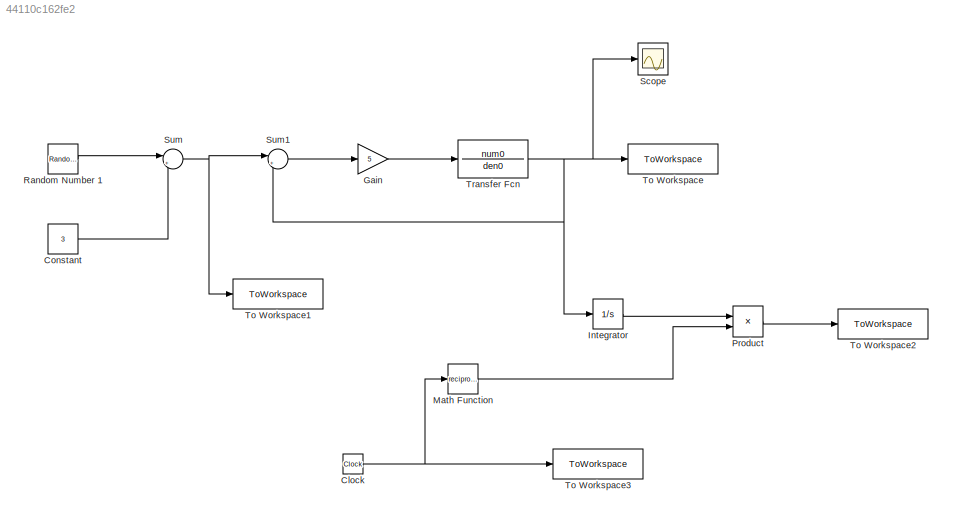
MODEL slx_44110c162fe2
KIND model
CONFIG AbsTol = auto
CONFIG EnableMultiTasking = off
CONFIG FixedStep = auto
CONFIG MaxStep = auto
CONFIG MinStep = auto
CONFIG RelTol = 1e-3
CONFIG SampleTimeConstraint = Unconstrained
CONFIG SolverName = VariableStepAuto
CONFIG StartTime = 0.0
CONFIG StopTime = 1000
BLOCK [Clock] Clock
BLOCK [Constant] Constant
  Value = 3
BLOCK [Gain] Gain
  Gain = 5
BLOCK [Integrator] Integrator
BLOCK [Math] Math Function
  Operator = reciprocal
  RndMeth = Zero
  SignedPower = on
BLOCK [Product] Product
BLOCK [RandomNumber] Random Number 1
  SampleTime = 0.1
BLOCK [Scope] Scope
  Floating = off
  NumInputPorts = 1
  ScopeSpecificationString = Simulink.scopes.TimeScopeBlockCfg('CurrentConfiguration', extmgr.ConfigurationSet(extmgr.Configuration('Core','General UI',true),extmgr.Configuration('Core','Source UI',true),extmgr.Configuration('Sources','WiredSimulink',true),extmgr.Configuration('Visuals','Time Domain',true,'SerializedDisplays',{struct('MinYLimReal','-0.6802','MaxYLimReal','6.12182','YLabelReal','','MinYLimMag','0.00000','MaxYL...<+1386ch>
BLOCK [Sum] Sum
  Inputs = |++
BLOCK [Sum] Sum1
  Inputs = |+-
BLOCK [ToWorkspace] To Workspace
  FixptAsFi = on
  MaxDataPoints = inf
  SampleTime = -1
  VariableName = Y
BLOCK [ToWorkspace] To Workspace1
  FixptAsFi = on
  MaxDataPoints = inf
  SampleTime = -1
  VariableName = U
BLOCK [ToWorkspace] To Workspace2
  FixptAsFi = on
  MaxDataPoints = inf
  SampleTime = -1
  VariableName = my
BLOCK [ToWorkspace] To Workspace3
  FixptAsFi = on
  MaxDataPoints = inf
  SampleTime = -1
  VariableName = t
BLOCK [TransferFcn] Transfer Fcn
  Denominator = den0
  Numerator = num0
NET Clock:1 -> Math Function:1, To Workspace3:1
LINE Constant:1 -> Sum:2
LINE Gain:1 -> Transfer Fcn:1
LINE Integrator:1 -> Product:1
LINE Math Function:1 -> Product:2
LINE Product:1 -> To Workspace2:1
LINE Random Number 1:1 -> Sum:1
LINE Sum1:1 -> Gain:1
NET Sum:1 -> Sum1:1, To Workspace1:1
NET Transfer Fcn:1 -> Integrator:1, Scope:1, Sum1:2, To Workspace:1
note: NET lines group one-source signal fan-out (src -> all destinations, sorted); 1:1 wires keep LINE
